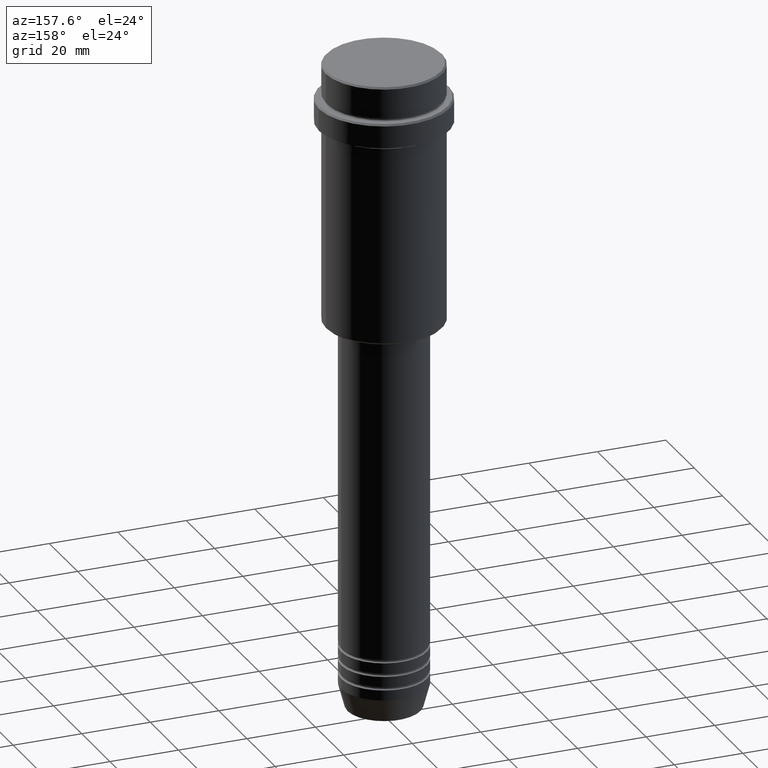
[diagram: clean part render]
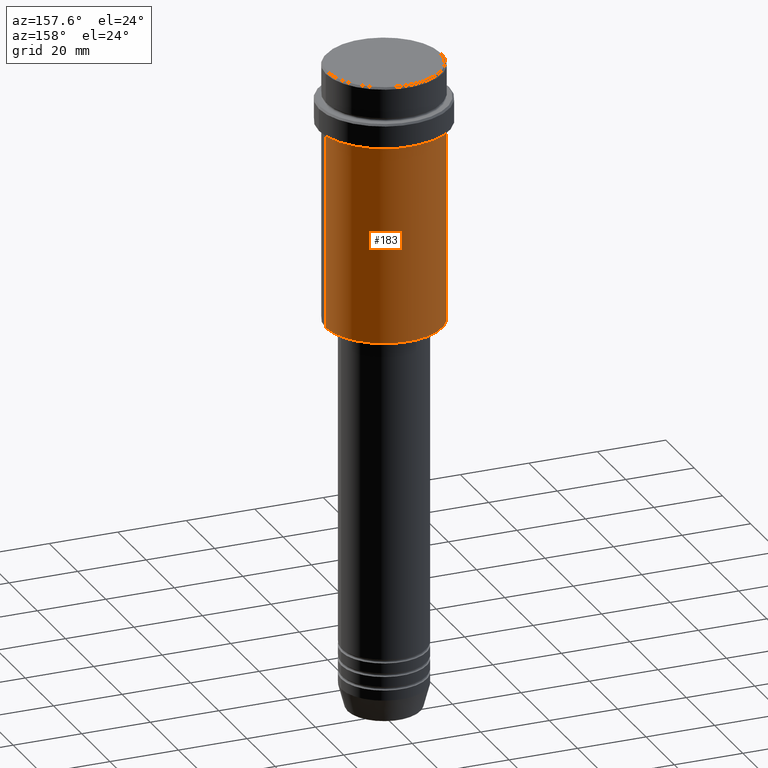
[diagram: same view with one face highlighted and labeled with its STEP entity id]
A machine part, auxiliary view. The second image highlights one B-rep face of the part: STEP entity #183.
In plain terms, the highlighted cylindrical surface (partial cylindrical patch) has radius 17 mm, axis along (-0, -0, 1).
Its self-contained STEP definition (entity closure, byte-faithful):
#13 = DIRECTION ( 'NONE',  ( 1.000000000000000000, 0.000000000000000000, 0.000000000000000000 ) ) ;
#60 = LINE ( 'NONE', #487, #303 ) ;
#83 = EDGE_CURVE ( 'NONE', #593, #737, #1195, .T. ) ;
#166 = CARTESIAN_POINT ( 'NONE',  ( 16.99999999999997868, 0.000000000000000000, -18.00000000000000711 ) ) ;
#183 = ADVANCED_FACE ( 'NONE', ( #220 ), #1286, .T. ) ;
#220 = FACE_OUTER_BOUND ( 'NONE', #883, .T. ) ;
#303 = VECTOR ( 'NONE', #383, 1000.000000000000000 ) ;
#320 = CARTESIAN_POINT ( 'NONE',  ( 0.000000000000000000, 0.000000000000000000, 0.000000000000000000 ) ) ;
#360 = ORIENTED_EDGE ( 'NONE', *, *, #601, .F. ) ;
#383 = DIRECTION ( 'NONE',  ( -0.000000000000000000, -0.000000000000000000, 1.000000000000000000 ) ) ;
#411 = CARTESIAN_POINT ( 'NONE',  ( 16.99999999999998934, 0.000000000000000000, -75.49999999999994316 ) ) ;
#416 = CIRCLE ( 'NONE', #851, 16.99999999999998934 ) ;
#436 = DIRECTION ( 'NONE',  ( -0.000000000000000000, -0.000000000000000000, 1.000000000000000000 ) ) ;
#452 = VERTEX_POINT ( 'NONE', #411 ) ;
#487 = CARTESIAN_POINT ( 'NONE',  ( 16.99999999999998934, 0.000000000000000000, 0.000000000000000000 ) ) ;
#566 = CARTESIAN_POINT ( 'NONE',  ( -16.99999999999998934, 2.081899558550499491E-15, 0.000000000000000000 ) ) ;
#593 = VERTEX_POINT ( 'NONE', #808 ) ;
#601 = EDGE_CURVE ( 'NONE', #1283, #737, #776, .T. ) ;
#638 = ORIENTED_EDGE ( 'NONE', *, *, #1269, .F. ) ;
#652 = ORIENTED_EDGE ( 'NONE', *, *, #83, .T. ) ;
#737 = VERTEX_POINT ( 'NONE', #950 ) ;
#738 = DIRECTION ( 'NONE',  ( -0.000000000000000000, -0.000000000000000000, 1.000000000000000000 ) ) ;
#752 = DIRECTION ( 'NONE',  ( 1.000000000000000000, 0.000000000000000000, 0.000000000000000000 ) ) ;
#776 = CIRCLE ( 'NONE', #938, 16.99999999999997868 ) ;
#791 = VECTOR ( 'NONE', #999, 1000.000000000000000 ) ;
#808 = CARTESIAN_POINT ( 'NONE',  ( -16.99999999999998934, 2.081899558550499491E-15, -75.49999999999994316 ) ) ;
#851 = AXIS2_PLACEMENT_3D ( 'NONE', #977, #874, #986 ) ;
#874 = DIRECTION ( 'NONE',  ( -0.000000000000000000, -0.000000000000000000, 1.000000000000000000 ) ) ;
#883 = EDGE_LOOP ( 'NONE', ( #1228, #652, #360, #638 ) ) ;
#884 = CARTESIAN_POINT ( 'NONE',  ( 0.000000000000000000, 0.000000000000000000, -18.00000000000000711 ) ) ;
#938 = AXIS2_PLACEMENT_3D ( 'NONE', #884, #436, #752 ) ;
#950 = CARTESIAN_POINT ( 'NONE',  ( -16.99999999999997868, 2.081899558550498702E-15, -18.00000000000000711 ) ) ;
#977 = CARTESIAN_POINT ( 'NONE',  ( 0.000000000000000000, 0.000000000000000000, -75.49999999999994316 ) ) ;
#986 = DIRECTION ( 'NONE',  ( -1.000000000000000000, 0.000000000000000000, 0.000000000000000000 ) ) ;
#999 = DIRECTION ( 'NONE',  ( -0.000000000000000000, -0.000000000000000000, 1.000000000000000000 ) ) ;
#1116 = AXIS2_PLACEMENT_3D ( 'NONE', #320, #738, #13 ) ;
#1195 = LINE ( 'NONE', #566, #791 ) ;
#1228 = ORIENTED_EDGE ( 'NONE', *, *, #1343, .T. ) ;
#1269 = EDGE_CURVE ( 'NONE', #452, #1283, #60, .T. ) ;
#1283 = VERTEX_POINT ( 'NONE', #166 ) ;
#1286 = CYLINDRICAL_SURFACE ( 'NONE', #1116, 16.99999999999998934 ) ;
#1343 = EDGE_CURVE ( 'NONE', #452, #593, #416, .T. ) ;